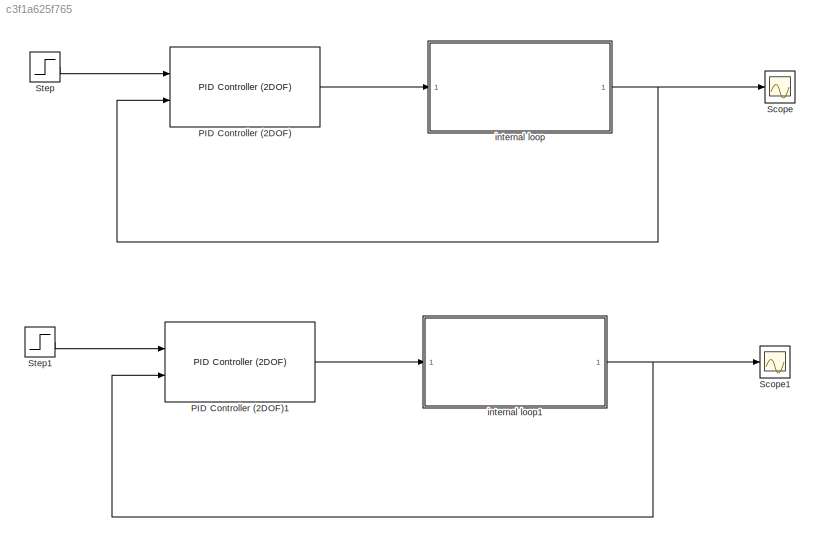
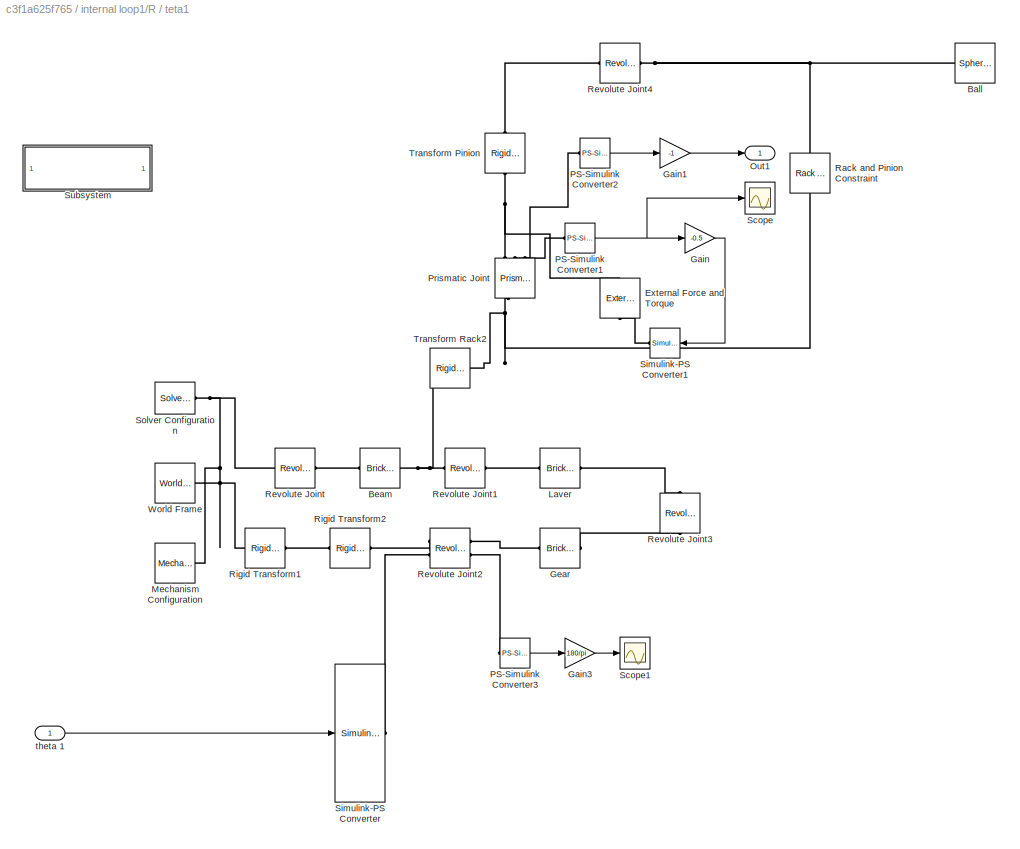
MODEL slx_c3f1a625f765
KIND model
CONFIG AbsTol = auto
CONFIG EnableMultiTasking = off
CONFIG FixedStep = auto
CONFIG MaxStep = auto
CONFIG MinStep = auto
CONFIG RelTol = 1e-3
CONFIG SampleTimeConstraint = Unconstrained
CONFIG SolverName = VariableStepAuto
CONFIG StartTime = 0.0
CONFIG StopTime = 30
BLOCK [Reference] PID Controller (2DOF)  REF=pid_lib/PID Controller (2DOF)
  Ports = [2, 1]
  SourceBlock = pid_lib/PID Controller (2DOF)
  SourceProductBaseCode = SL
  SourceType = PID 2dof
BLOCK [Reference] PID Controller (2DOF)1  REF=pid_lib/PID Controller (2DOF)
  Ports = [2, 1]
  SourceBlock = pid_lib/PID Controller (2DOF)
  SourceProductBaseCode = SL
  SourceType = PID 2dof
BLOCK [Scope] Scope
  Floating = off
  NumInputPorts = 1
  Ports = [1]
  ScopeSpecificationString = Simulink.scopes.TimeScopeBlockCfg('CurrentConfiguration', extmgr.ConfigurationSet(extmgr.Configuration('Core','General UI',true),extmgr.Configuration('Core','Source UI',true),extmgr.Configuration('Sources','WiredSimulink',true,'DataLoggingVariableName','ScopeData1'),extmgr.Configuration('Visuals','Time Domain',true,'SerializedDisplays',{struct('MinYLimReal','-0.06355','MaxYLimReal','0.57193','YLab...<+1403ch>
BLOCK [Scope] Scope1
  Floating = off
  NumInputPorts = 1
  Ports = [1]
  ScopeSpecificationString = Simulink.scopes.TimeScopeBlockCfg('CurrentConfiguration', extmgr.ConfigurationSet(extmgr.Configuration('Core','General UI',true),extmgr.Configuration('Core','Source UI',true),extmgr.Configuration('Sources','WiredSimulink',true,'DataLoggingVariableName','ScopeData1'),extmgr.Configuration('Visuals','Time Domain',true,'SerializedDisplays',{struct('MinYLimReal','-0.0633','MaxYLimReal','0.56974','YLabe...<+1402ch>
BLOCK [Step] Step
  After = 0.5
  SampleTime = 0
  Time = 0
BLOCK [Step] Step1
  After = 0.5
  SampleTime = 0
  Time = 0
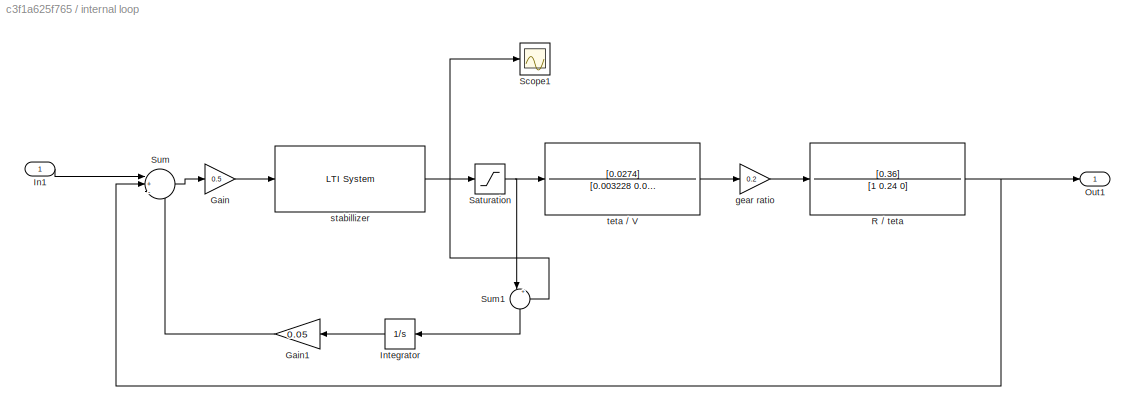
BLOCK [SubSystem] internal loop
  Ports = [1, 1]
  RequestExecContextInheritance = off
BLOCK [Gain] internal loop/Gain
  Gain = 0.5
BLOCK [Gain] internal loop/Gain1
  Gain = 0.05
  NameLocation = top
BLOCK [Inport] internal loop/In1
BLOCK [Integrator] internal loop/Integrator
  NameLocation = top
  Ports = [1, 1]
BLOCK [Outport] internal loop/Out1
BLOCK [TransferFcn] internal loop/R // teta
  Denominator = [1 0.24 0]
  Numerator = [0.36]
BLOCK [Saturate] internal loop/Saturation
  LowerLimit = -20
  UpperLimit = 20
BLOCK [Scope] internal loop/Scope1
  Floating = off
  NumInputPorts = 1
  Ports = [1]
  ScopeSpecificationString = Simulink.scopes.TimeScopeBlockCfg('CurrentConfiguration', extmgr.ConfigurationSet(extmgr.Configuration('Core','General UI',true),extmgr.Configuration('Core','Source UI',true),extmgr.Configuration('Sources','WiredSimulink',true,'DataLoggingVariableName','ScopeData1'),extmgr.Configuration('Visuals','Time Domain',true,'SerializedDisplays',{struct('MinYLimReal','-2.75282','MaxYLimReal','18.75449','YLa...<+1407ch>
BLOCK [Sum] internal loop/Sum
  Inputs = |+-+
  Ports = [3, 1]
BLOCK [Sum] internal loop/Sum1
  Inputs = |+-
  NameLocation = left
  Ports = [2, 1]
BLOCK [Gain] internal loop/gear ratio
  Gain = 0.2
BLOCK [Reference] internal loop/stabillizer  REF=cstblocks/LTI System
  Ports = [1, 1]
  SourceBlock = cstblocks/LTI System
  SourceProductBaseCode = CT
  SourceType = LTI Block
BLOCK [TransferFcn] internal loop/teta // V
  Denominator = [0.003228 0.003508 0]
  Numerator = [0.0274]
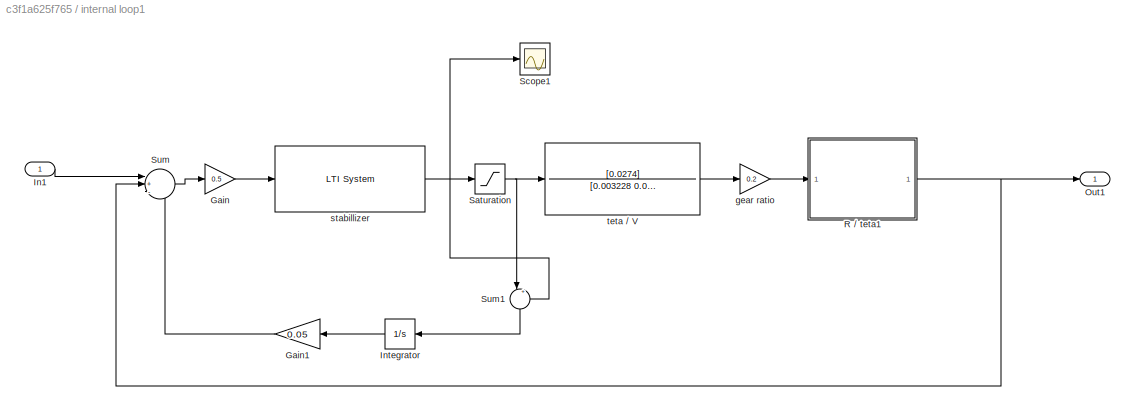
BLOCK [SubSystem] internal loop1
  Ports = [1, 1]
  RequestExecContextInheritance = off
BLOCK [Gain] internal loop1/Gain
  Gain = 0.5
BLOCK [Gain] internal loop1/Gain1
  Gain = 0.05
  NameLocation = top
BLOCK [Inport] internal loop1/In1
BLOCK [Integrator] internal loop1/Integrator
  NameLocation = top
  Ports = [1, 1]
BLOCK [Outport] internal loop1/Out1
BLOCK [SubSystem] internal loop1/R // teta1
  Ports = [1, 1]
  RequestExecContextInheritance = off
BLOCK [Reference] internal loop1/R // teta1/Ball  REF=sm_lib/Body Elements/Spherical Solid
  Ports = [0, 0, 0, 0, 0, 0, 1]
  SourceBlock = sm_lib/Body Elements/Spherical Solid
  SourceProductBaseCode = MS
  SourceType = Spherical Solid
BLOCK [Reference] internal loop1/R // teta1/Beam  REF=sm_lib/Body Elements/Brick Solid
  NameLocation = top
  Ports = [0, 0, 0, 0, 0, 1, 1]
  SourceBlock = sm_lib/Body Elements/Brick Solid
  SourceProductBaseCode = MS
  SourceType = Brick Solid
BLOCK [Reference] internal loop1/R // teta1/External Force and Torque  REF=sm_lib/Forces and
Torques/External Force
and Torque
  NameLocation = right
  Ports = [0, 0, 0, 0, 0, 1, 1]
  SourceBlock = sm_lib/Forces and\nTorques/External Force\nand Torque
  SourceProductBaseCode = MS
  SourceType = External Force\nand Torque
BLOCK [Gain] internal loop1/R // teta1/Gain
  Gain = -0.5
BLOCK [Gain] internal loop1/R // teta1/Gain1
  Gain = -1
BLOCK [Gain] internal loop1/R // teta1/Gain3
  Gain = 180/pi
BLOCK [Reference] internal loop1/R // teta1/Gear  REF=sm_lib/Body Elements/Brick Solid
  Ports = [0, 0, 0, 0, 0, 1, 1]
  SourceBlock = sm_lib/Body Elements/Brick Solid
  SourceProductBaseCode = MS
  SourceType = Brick Solid
BLOCK [Reference] internal loop1/R // teta1/Laver  REF=sm_lib/Body Elements/Brick Solid
  Ports = [0, 0, 0, 0, 0, 1, 1]
  SourceBlock = sm_lib/Body Elements/Brick Solid
  SourceProductBaseCode = MS
  SourceType = Brick Solid
BLOCK [Reference] internal loop1/R // teta1/Mechanism Configuration  REF=sm_lib/Utilities/Mechanism
Configuration
  Ports = [0, 0, 0, 0, 0, 0, 1]
  SourceBlock = sm_lib/Utilities/Mechanism\nConfiguration
  SourceProductBaseCode = MS
  SourceType = Mechanism\nConfiguration
BLOCK [Outport] internal loop1/R // teta1/Out1
BLOCK [Reference] internal loop1/R // teta1/PS-Simulink Converter1  REF=nesl_utility/PS-Simulink
Converter
  Ports = [0, 1, 0, 0, 0, 1]
  SourceBlock = nesl_utility/PS-Simulink\nConverter
  SourceProductBaseCode = PW,SS
  SourceType = PS-Simulink\nConverter
BLOCK [Reference] internal loop1/R // teta1/PS-Simulink Converter2  REF=nesl_utility/PS-Simulink
Converter
  Ports = [0, 1, 0, 0, 0, 1]
  SourceBlock = nesl_utility/PS-Simulink\nConverter
  SourceProductBaseCode = PW,SS
  SourceType = PS-Simulink\nConverter
BLOCK [Reference] internal loop1/R // teta1/PS-Simulink Converter3  REF=nesl_utility/PS-Simulink
Converter
  Ports = [0, 1, 0, 0, 0, 1]
  SourceBlock = nesl_utility/PS-Simulink\nConverter
  SourceProductBaseCode = PW,SS
  SourceType = PS-Simulink\nConverter
BLOCK [Reference] internal loop1/R // teta1/Prismatic Joint  REF=sm_lib/Joints/Prismatic
Joint
  NameLocation = left
  Ports = [0, 0, 0, 0, 0, 2, 3]
  SourceBlock = sm_lib/Joints/Prismatic\nJoint
  SourceProductBaseCode = MS
  SourceType = Prismatic\nJoint
BLOCK [Reference] internal loop1/R // teta1/Rack and Pinion Constraint  REF=sm_lib/Gears and
Couplings/Gears/Rack and Pinion
Constraint
  NameLocation = right
  Ports = [0, 0, 0, 0, 0, 1, 1]
  SourceBlock = sm_lib/Gears and\nCouplings/Gears/Rack and Pinion\nConstraint
  SourceProductBaseCode = MS
  SourceType = Rack and Pinion\nConstraint
BLOCK [Reference] internal loop1/R // teta1/Revolute Joint  REF=sm_lib/Joints/Revolute Joint
  Ports = [0, 0, 0, 0, 0, 1, 1]
  SourceBlock = sm_lib/Joints/Revolute Joint
  SourceProductBaseCode = MS
  SourceType = Revolute Joint
BLOCK [Reference] internal loop1/R // teta1/Revolute Joint1  REF=sm_lib/Joints/Revolute Joint
  Ports = [0, 0, 0, 0, 0, 1, 1]
  SourceBlock = sm_lib/Joints/Revolute Joint
  SourceProductBaseCode = MS
  SourceType = Revolute Joint
BLOCK [Reference] internal loop1/R // teta1/Revolute Joint2  REF=sm_lib/Joints/Revolute Joint
  Ports = [0, 0, 0, 0, 0, 2, 2]
  SourceBlock = sm_lib/Joints/Revolute Joint
  SourceProductBaseCode = MS
  SourceType = Revolute Joint
BLOCK [Reference] internal loop1/R // teta1/Revolute Joint3  REF=sm_lib/Joints/Revolute Joint
  NameLocation = left
  Ports = [0, 0, 0, 0, 0, 1, 1]
  SourceBlock = sm_lib/Joints/Revolute Joint
  SourceProductBaseCode = MS
  SourceType = Revolute Joint
BLOCK [Reference] internal loop1/R // teta1/Revolute Joint4  REF=sm_lib/Joints/Revolute Joint
  Ports = [0, 0, 0, 0, 0, 1, 1]
  SourceBlock = sm_lib/Joints/Revolute Joint
  SourceProductBaseCode = MS
  SourceType = Revolute Joint
BLOCK [Reference] internal loop1/R // teta1/Rigid Transform1  REF=sm_lib/Frames and
Transforms/Rigid
Transform
  Ports = [0, 0, 0, 0, 0, 1, 1]
  SourceBlock = sm_lib/Frames and\nTransforms/Rigid\nTransform
  SourceProductBaseCode = MS
  SourceType = Rigid\nTransform
BLOCK [Reference] internal loop1/R // teta1/Rigid Transform2  REF=sm_lib/Frames and
Transforms/Rigid
Transform
  Ports = [0, 0, 0, 0, 0, 1, 1]
  SourceBlock = sm_lib/Frames and\nTransforms/Rigid\nTransform
  SourceProductBaseCode = MS
  SourceType = Rigid\nTransform
BLOCK [Scope] internal loop1/R // teta1/Scope
  Floating = off
  NumInputPorts = 1
  Ports = [1]
  ScopeSpecificationString = Simulink.scopes.TimeScopeBlockCfg('CurrentConfiguration', extmgr.ConfigurationSet(extmgr.Configuration('Core','General UI',true,'FigureColor',[0.156862745098039 0.156862745098039 0.156862745098039]),extmgr.Configuration('Core','Source UI',true),extmgr.Configuration('Sources','WiredSimulink',true,'DataLoggingSaveFormat','StructureWithTime','DataLoggingDecimation','1','DataLoggingDecimateData',true)...<+2734ch>
BLOCK [Scope] internal loop1/R // teta1/Scope1
  Floating = off
  NumInputPorts = 1
  Ports = [1]
  ScopeSpecificationString = C++SS(StrPVP('Open','off'),StrPVP('TimeRange','auto'),StrPVP('TickLabels','OneTimeTick'),StrPVP('ShowLegends','off'),StrPVP('LimitDataPoints','off'),StrPVP('MaxDataPoints','5000'),StrPVP('SaveToWorkspace','off'),StrPVP('SaveName','ScopeData1'),StrPVP('YMin','-1.66483'),StrPVP('YMax','6.08356'),StrPVP('BlockParamSampleInput','off'),StrPVP('BlockParamSampleTime','-1'),StrPVP('ZoomMode','on'),StrPVP(...<+581ch>
BLOCK [Reference] internal loop1/R // teta1/Simulink-PS Converter  REF=nesl_utility/Simulink-PS
Converter
  Ports = [1, 0, 0, 0, 0, 0, 1]
  SourceBlock = nesl_utility/Simulink-PS\nConverter
  SourceProductBaseCode = PW,SS
  SourceType = Simulink-PS\nConverter
BLOCK [Reference] internal loop1/R // teta1/Simulink-PS Converter1  REF=nesl_utility/Simulink-PS
Converter
  NameLocation = top
  Ports = [1, 0, 0, 0, 0, 0, 1]
  SourceBlock = nesl_utility/Simulink-PS\nConverter
  SourceProductBaseCode = PW,SS
  SourceType = Simulink-PS\nConverter
BLOCK [Reference] internal loop1/R // teta1/Solver Configuration  REF=nesl_utility/Solver
Configuration
  Ports = [0, 0, 0, 0, 0, 0, 1]
  SourceBlock = nesl_utility/Solver\nConfiguration
  SourceProductBaseCode = PW,SS
  SourceType = Solver\nConfiguration
BLOCK [SubSystem] internal loop1/R // teta1/Subsystem
  OpenFcn = open_system('sm_lib')
  Ports = []
  RequestExecContextInheritance = off
  ShowPortLabels = none
BLOCK [Reference] internal loop1/R // teta1/Transform Pinion  REF=sm_lib/Frames and
Transforms/Rigid
Transform
  NameLocation = left
  Ports = [0, 0, 0, 0, 0, 1, 1]
  SourceBlock = sm_lib/Frames and\nTransforms/Rigid\nTransform
  SourceProductBaseCode = MS
  SourceType = Rigid\nTransform
BLOCK [Reference] internal loop1/R // teta1/Transform Rack2  REF=sm_lib/Frames and
Transforms/Rigid
Transform
  Ports = [0, 0, 0, 0, 0, 1, 1]
  SourceBlock = sm_lib/Frames and\nTransforms/Rigid\nTransform
  SourceProductBaseCode = MS
  SourceType = Rigid\nTransform
BLOCK [Reference] internal loop1/R // teta1/World Frame  REF=sm_lib/Frames and
Transforms/World Frame
  Ports = [0, 0, 0, 0, 0, 0, 1]
  SourceBlock = sm_lib/Frames and\nTransforms/World Frame
  SourceProductBaseCode = MS
  SourceType = World Frame
BLOCK [Inport] internal loop1/R // teta1/theta 1
BLOCK [Saturate] internal loop1/Saturation
  LowerLimit = -20
  UpperLimit = 20
BLOCK [Scope] internal loop1/Scope1
  Floating = off
  NumInputPorts = 1
  Ports = [1]
  ScopeSpecificationString = Simulink.scopes.TimeScopeBlockCfg('CurrentConfiguration', extmgr.ConfigurationSet(extmgr.Configuration('Core','General UI',true),extmgr.Configuration('Core','Source UI',true),extmgr.Configuration('Sources','WiredSimulink',true,'DataLoggingVariableName','ScopeData1'),extmgr.Configuration('Visuals','Time Domain',true,'SerializedDisplays',{struct('MinYLimReal','-2.75282','MaxYLimReal','18.75449','YLa...<+1407ch>
BLOCK [Sum] internal loop1/Sum
  Inputs = |+-+
  Ports = [3, 1]
BLOCK [Sum] internal loop1/Sum1
  Inputs = |+-
  NameLocation = left
  Ports = [2, 1]
BLOCK [Gain] internal loop1/gear ratio
  Gain = 0.2
BLOCK [Reference] internal loop1/stabillizer  REF=cstblocks/LTI System
  Ports = [1, 1]
  SourceBlock = cstblocks/LTI System
  SourceProductBaseCode = CT
  SourceType = LTI Block
BLOCK [TransferFcn] internal loop1/teta // V
  Denominator = [0.003228 0.003508 0]
  Numerator = [0.0274]
LINE PID Controller (2DOF)1:1 -> internal loop1:1
LINE PID Controller (2DOF):1 -> internal loop:1
LINE Step1:1 -> PID Controller (2DOF)1:1
LINE Step:1 -> PID Controller (2DOF):1
LINE internal loop/Gain1:1 -> internal loop/Sum:3
LINE internal loop/Gain:1 -> internal loop/stabillizer:1
LINE internal loop/In1:1 -> internal loop/Sum:1
LINE internal loop/Integrator:1 -> internal loop/Gain1:1
NET internal loop/R // teta:1 -> internal loop/Out1:1, internal loop/Sum:2
NET internal loop/Saturation:1 -> internal loop/Sum1:1, internal loop/teta // V:1
LINE internal loop/Sum1:1 -> internal loop/Integrator:1
LINE internal loop/Sum:1 -> internal loop/Gain:1
LINE internal loop/gear ratio:1 -> internal loop/R // teta:1
NET internal loop/stabillizer:1 -> internal loop/Saturation:1, internal loop/Scope1:1, internal loop/Sum1:2
LINE internal loop/teta // V:1 -> internal loop/gear ratio:1
LINE internal loop1/Gain1:1 -> internal loop1/Sum:3
LINE internal loop1/Gain:1 -> internal loop1/stabillizer:1
LINE internal loop1/In1:1 -> internal loop1/Sum:1
LINE internal loop1/Integrator:1 -> internal loop1/Gain1:1
LINE internal loop1/R // teta1/Gain1:1 -> internal loop1/R // teta1/Out1:1
LINE internal loop1/R // teta1/Gain3:1 -> internal loop1/R // teta1/Scope1:1
LINE internal loop1/R // teta1/Gain:1 -> internal loop1/R // teta1/Simulink-PS Converter1:1
NET internal loop1/R // teta1/PS-Simulink Converter1:1 -> internal loop1/R // teta1/Gain:1, internal loop1/R // teta1/Scope:1
LINE internal loop1/R // teta1/PS-Simulink Converter2:1 -> internal loop1/R // teta1/Gain1:1
LINE internal loop1/R // teta1/PS-Simulink Converter3:1 -> internal loop1/R // teta1/Gain3:1
LINE internal loop1/R // teta1/theta 1:1 -> internal loop1/R // teta1/Simulink-PS Converter:1
NET internal loop1/R // teta1:1 -> internal loop1/Out1:1, internal loop1/Sum:2
NET internal loop1/Saturation:1 -> internal loop1/Sum1:1, internal loop1/teta // V:1
LINE internal loop1/Sum1:1 -> internal loop1/Integrator:1
LINE internal loop1/Sum:1 -> internal loop1/Gain:1
LINE internal loop1/gear ratio:1 -> internal loop1/R // teta1:1
NET internal loop1/stabillizer:1 -> internal loop1/Saturation:1, internal loop1/Scope1:1, internal loop1/Sum1:2
LINE internal loop1/teta // V:1 -> internal loop1/gear ratio:1
NET internal loop1:1 -> PID Controller (2DOF)1:2, Scope1:1
NET internal loop:1 -> PID Controller (2DOF):2, Scope:1
PNET net1: internal loop1/R // teta1/Ball:RConn1 -- internal loop1/R // teta1/Rack and Pinion Constraint:LConn1 -- internal loop1/R // teta1/Revolute Joint4:RConn1
PNET net2: internal loop1/R // teta1/Beam:LConn1 -- internal loop1/R // teta1/Revolute Joint1:LConn1 -- internal loop1/R // teta1/Transform Rack2:LConn1
PLINE internal loop1/R // teta1/Beam:RConn1 -- internal loop1/R // teta1/Revolute Joint:RConn1
PLINE internal loop1/R // teta1/External Force and Torque:LConn1 -- internal loop1/R // teta1/Simulink-PS Converter1:RConn1
PNET net3: internal loop1/R // teta1/External Force and Torque:RConn1 -- internal loop1/R // teta1/Prismatic Joint:RConn1 -- internal loop1/R // teta1/Transform Pinion:LConn1
PLINE internal loop1/R // teta1/Gear:LConn1 -- internal loop1/R // teta1/Revolute Joint2:RConn1
PLINE internal loop1/R // teta1/Gear:RConn1 -- internal loop1/R // teta1/Revolute Joint3:RConn1
PLINE internal loop1/R // teta1/Laver:LConn1 -- internal loop1/R // teta1/Revolute Joint1:RConn1
PLINE internal loop1/R // teta1/Laver:RConn1 -- internal loop1/R // teta1/Revolute Joint3:LConn1
PNET net4: internal loop1/R // teta1/Mechanism Configuration:RConn1 -- internal loop1/R // teta1/Revolute Joint:LConn1 -- internal loop1/R // teta1/Rigid Transform1:LConn1 -- internal loop1/R // teta1/Solver Configuration:RConn1 -- internal loop1/R // teta1/World Frame:RConn1
PLINE internal loop1/R // teta1/PS-Simulink Converter1:LConn1 -- internal loop1/R // teta1/Prismatic Joint:RConn3
PLINE internal loop1/R // teta1/PS-Simulink Converter2:LConn1 -- internal loop1/R // teta1/Prismatic Joint:RConn2
PLINE internal loop1/R // teta1/PS-Simulink Converter3:LConn1 -- internal loop1/R // teta1/Revolute Joint2:RConn2
PNET net5: internal loop1/R // teta1/Prismatic Joint:LConn1 -- internal loop1/R // teta1/Rack and Pinion Constraint:RConn1 -- internal loop1/R // teta1/Transform Rack2:RConn1
PLINE internal loop1/R // teta1/Revolute Joint2:LConn1 -- internal loop1/R // teta1/Rigid Transform2:RConn1
PLINE internal loop1/R // teta1/Revolute Joint2:LConn2 -- internal loop1/R // teta1/Simulink-PS Converter:RConn1
PLINE internal loop1/R // teta1/Revolute Joint4:LConn1 -- internal loop1/R // teta1/Transform Pinion:RConn1
PLINE internal loop1/R // teta1/Rigid Transform1:RConn1 -- internal loop1/R // teta1/Rigid Transform2:LConn1
note: NET lines group one-source signal fan-out (src -> all destinations, sorted); 1:1 wires keep LINE; PNET lines group multi-terminal physical nets as a canonical sorted terminal list (undirected conserving connections); 2-terminal nets keep the pairwise PLINE form
